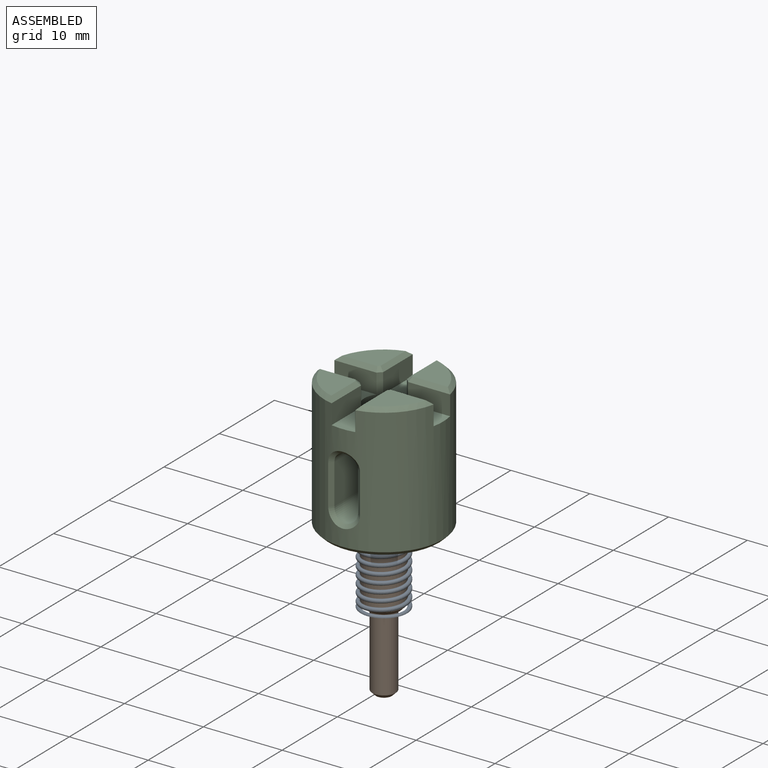
[diagram: assembled view]
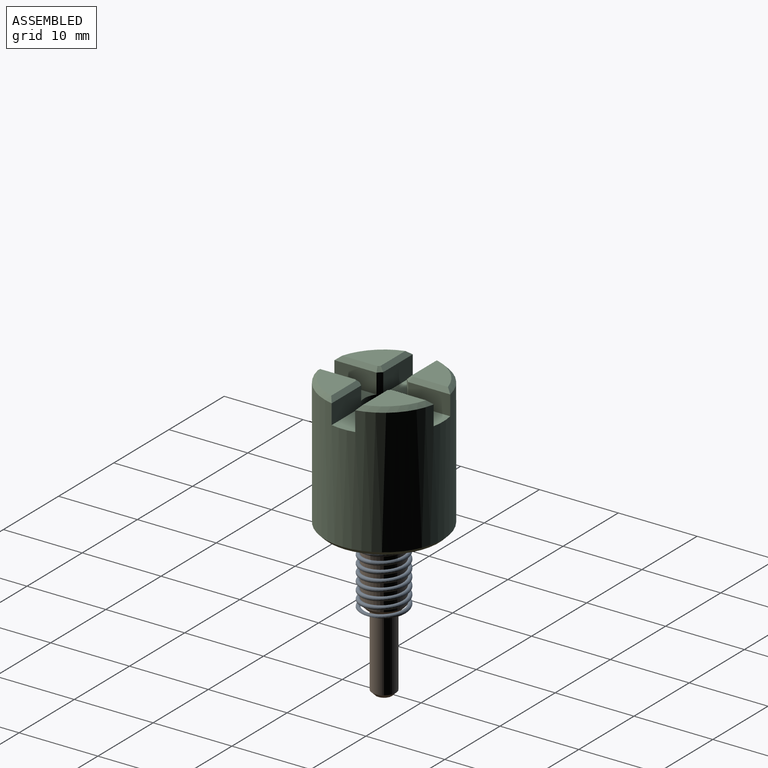
[diagram: assembled view, second angle]
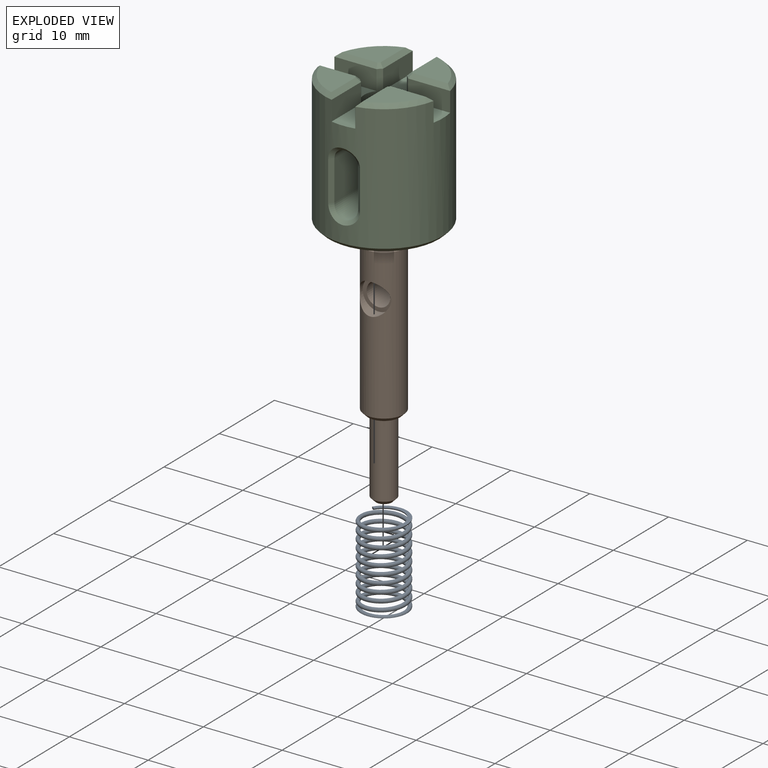
[diagram: exploded view]
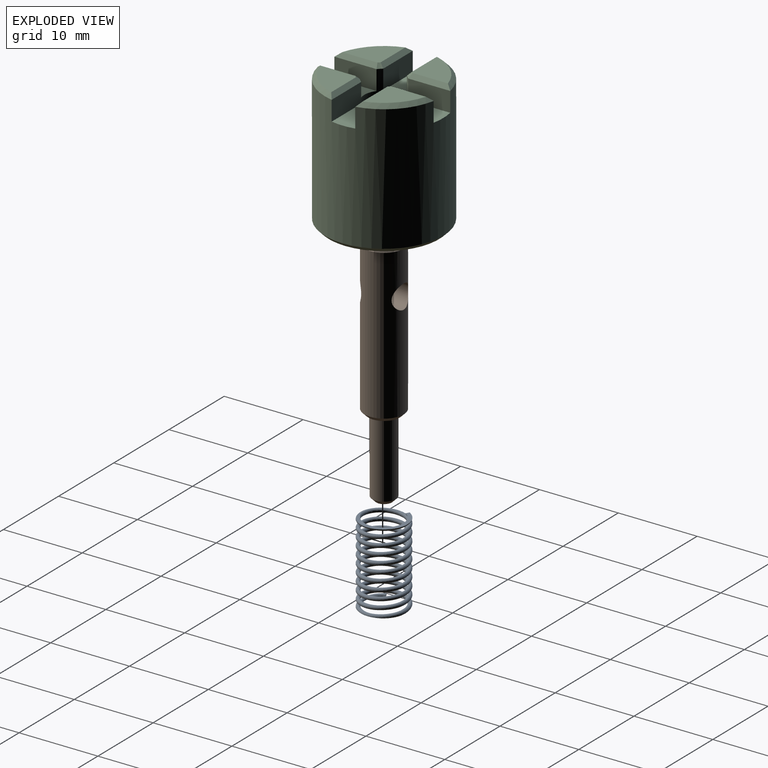
[diagram: exploded view, second angle]
ASSEMBLY  parts=3 mates=2
PART A: 7 faces, bbox 6.1x6.8x11.2 mm
  f0: bspline ~11.2x6.81mm, area 262mm2, adj f1,f3,f5,f6
  f1: torus R=2.7mm, axis (0,0,-1), area 5.6mm2, adj f0,f2,f6
  f2: plane 0.43x0.25mm, normal (-0.5,-0.87,0), area 0.1mm2, adj f1,f6
  f3: torus R=2.7mm, axis (0,0,1), area 5.6mm2, adj f0,f4,f5
  f4: plane 0.43x0.25mm, normal (-0.5,0.87,0), area 0.1mm2, adj f3,f5
  f5: plane 5.72x5.5mm, normal (0,0,-1), area 5.3mm2, adj f0,f3,f4
  f6: plane 5.72x5.5mm, normal (0,0,1), area 5.1mm2, adj f0,f1,f2
PART B: 11 faces, bbox 5x5x30 mm
  f0: cylinder r=1.5mm len=3.5mm, axis (0,-1,0), area 30.7mm2, adj f1,f10
  f1: cylinder r=2.5mm len=19mm, axis (0,0,-1), area 277.1mm2, adj f0,f6,f7,f9
  f2: plane 4x4mm, normal (0,0,1), area 12.6mm2, adj f6
  f3: plane 4x4mm, normal (0,0,-1), area 5.5mm2, adj f4,f7
  f4: cylinder r=1.5mm len=9.5mm, axis (0,0,1), area 89.5mm2, adj f3,f8
  f5: plane 2x2mm, normal (0,0,-1), area 3.1mm2, adj f8
  f6: cone r=2mm half-angle=45deg, axis (0,0,-1), area 10mm2, adj f1,f2
  f7: cone r=2.5mm half-angle=45deg, axis (0,0,1), area 10mm2, adj f1,f3
  f8: cone r=1.5mm half-angle=45deg, axis (0,0,1), area 5.6mm2, adj f4,f5
  f9: cylinder r=2mm len=4mm, axis (0,-1,0), area 13mm2, adj f1,f10
  f10: plane 4x4mm, normal (0,-1,0), area 5.5mm2, adj f0,f9
PART C: 45 faces, bbox 15x15x17 mm
  f0: cylinder r=2.5mm len=16mm, axis (0,0,-1), area 195.6mm2, adj f2,f3,f4,f5,f6,f7,f9,f10
  f1: cylinder r=7.5mm len=16mm, axis (0,0,-1), area 691.1mm2, adj f2,f3,f4,f5,f6,f7,f9,f10
  f2: plane 5.5x3mm, normal (0,0,1), area 15.3mm2, adj f0,f1,f12,f15
  f3: plane 5.5x3mm, normal (0,0,1), area 15.3mm2, adj f0,f1,f7,f16
  f4: plane 5.5x3mm, normal (0,0,1), area 15.3mm2, adj f0,f1,f6,f9
  f5: plane 5.5x3mm, normal (0,0,1), area 15.3mm2, adj f0,f1,f10,f13
  f6: plane 5.35x2.5mm, normal (-1,0,0), area 13.4mm2, adj f0,f1,f4,f27
  f7: plane 5.35x2.5mm, normal (0,-1,0), area 13.4mm2, adj f0,f1,f3,f26
  f8: plane 4.71x4.71mm, normal (0,0,1), area 14.8mm2, adj f25,f26,f27,f28
  f9: plane 5.35x2.5mm, normal (1,0,0), area 13.4mm2, adj f0,f1,f4,f30
  f10: plane 5.35x2.5mm, normal (0,-1,0), area 13.4mm2, adj f0,f1,f5,f31
  f11: plane 4.71x4.71mm, normal (0,0,1), area 14.8mm2, adj f29,f30,f31,f32
  f12: plane 5.35x2.5mm, normal (1,0,0), area 13.4mm2, adj f0,f1,f2,f35
  f13: plane 5.35x2.5mm, normal (0,1,0), area 13.4mm2, adj f0,f1,f5,f34
  f14: plane 4.71x4.71mm, normal (0,0,1), area 14.8mm2, adj f33,f34,f35,f36
  f15: plane 5.35x2.5mm, normal (-1,0,0), area 13.4mm2, adj f0,f1,f2,f22
  f16: plane 5.35x2.5mm, normal (0,1,0), area 13.4mm2, adj f0,f1,f3,f23
  f17: plane 4.71x4.71mm, normal (0,0,1), area 14.8mm2, adj f21,f22,f23,f24
  f18: plane 14x14mm, normal (0,0,-1), area 125.7mm2, adj f19,f20
  f19: cone r=3mm half-angle=45deg, axis (0,0,-1), area 12.2mm2, adj f0,f18
  f20: cone r=7.5mm half-angle=45deg, axis (0,0,1), area 32.2mm2, adj f1,f18
  f21: cone r=7mm half-angle=45deg, axis (0,0,-1), area 5.5mm2, adj f1,f17,f22,f23
  f22: plane 5.37x0.52mm, normal (-0.71,0,0.71), area 3.5mm2, adj f15,f17,f21,f24
  f23: plane 5.37x0.52mm, normal (0,0.71,0.71), area 3.5mm2, adj f16,f17,f21,f24
  f24: cone r=2.5mm half-angle=45deg, axis (0,0,1), area 0.4mm2, adj f0,f17,f22,f23
  f25: cone r=7mm half-angle=45deg, axis (0,0,-1), area 5.5mm2, adj f1,f8,f26,f27
  f26: plane 5.37x0.52mm, normal (0,-0.71,0.71), area 3.5mm2, adj f7,f8,f25,f28
  f27: plane 5.37x0.52mm, normal (-0.71,0,0.71), area 3.5mm2, adj f6,f8,f25,f28
  f28: cone r=2.5mm half-angle=45deg, axis (0,0,1), area 0.4mm2, adj f0,f8,f26,f27
  f29: cone r=7mm half-angle=45deg, axis (0,0,-1), area 5.5mm2, adj f1,f11,f30,f31
  f30: plane 5.37x0.52mm, normal (0.71,0,0.71), area 3.5mm2, adj f9,f11,f29,f32
  f31: plane 5.37x0.52mm, normal (0,-0.71,0.71), area 3.5mm2, adj f10,f11,f29,f32
  f32: cone r=2.5mm half-angle=45deg, axis (0,0,1), area 0.4mm2, adj f0,f11,f30,f31
  f33: cone r=7mm half-angle=45deg, axis (0,0,-1), area 5.5mm2, adj f1,f14,f34,f35
  f34: plane 5.37x0.52mm, normal (0,0.71,0.71), area 3.5mm2, adj f13,f14,f33,f36
  f35: plane 5.37x0.52mm, normal (0.71,0,0.71), area 3.5mm2, adj f12,f14,f33,f36
  f36: cone r=2.5mm half-angle=45deg, axis (0,0,1), area 0.4mm2, adj f0,f14,f34,f35
  f37: plane 5x4.83mm, normal (-1,0,0), area 24.2mm2, adj f0,f38,f40,f42
  f38: cylinder r=1.5mm len=4.83mm, axis (0,-1,0), area 22.8mm2, adj f0,f37,f39,f44
  f39: plane 5x4.83mm, normal (1,0,0), area 24.2mm2, adj f0,f38,f40,f43
  f40: cylinder r=1.5mm len=4.83mm, axis (0,-1,0), area 22.8mm2, adj f0,f37,f39,f41
  f41: bspline ~4.04x1.91mm, area 3.4mm2, adj f1,f40,f42,f43
  f42: plane 5x0.52mm, normal (-0.6,-0.8,0), area 3.3mm2, adj f1,f37,f41,f44
  f43: plane 5x0.52mm, normal (0.6,-0.8,0), area 3.3mm2, adj f1,f39,f41,f44
  f44: bspline ~4.04x1.91mm, area 3.4mm2, adj f1,f38,f42,f43
PLACE A t=(-8.52,-3.66,-20.15)mm
PLACE B t=(-8.52,-3.66,-20.15)mm
PLACE C t=(-8.52,-3.66,-1.95)mm
MATE fastened A.f1 <-> B.f1  axis (0,0,-1) through (-8.52,-3.66,-20.15)mm
MATE fastened C.f0 <-> A.f1  axis (0,0,-1) through (-8.52,-3.66,-10.95)mm
